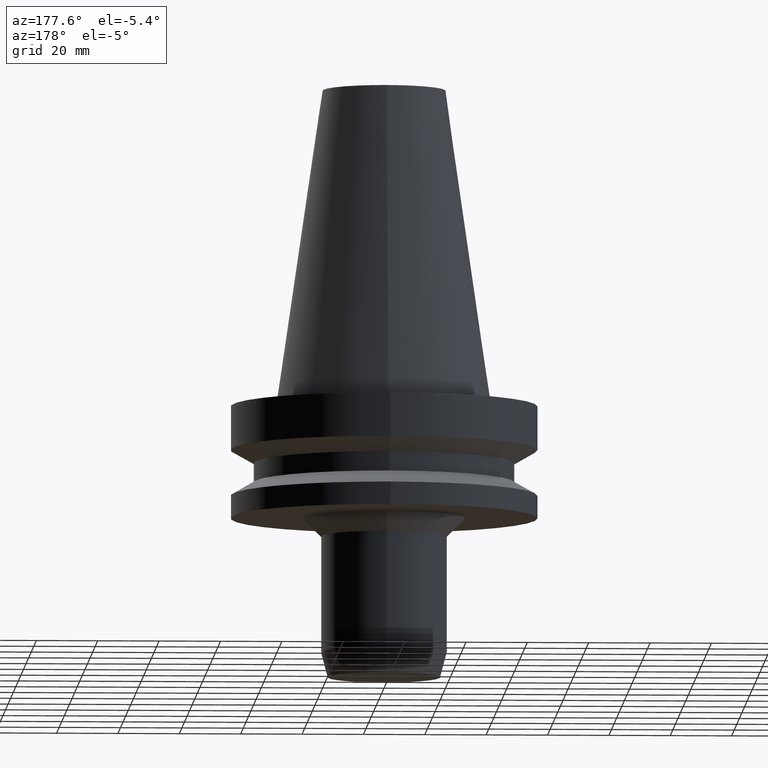
[diagram: clean part render]
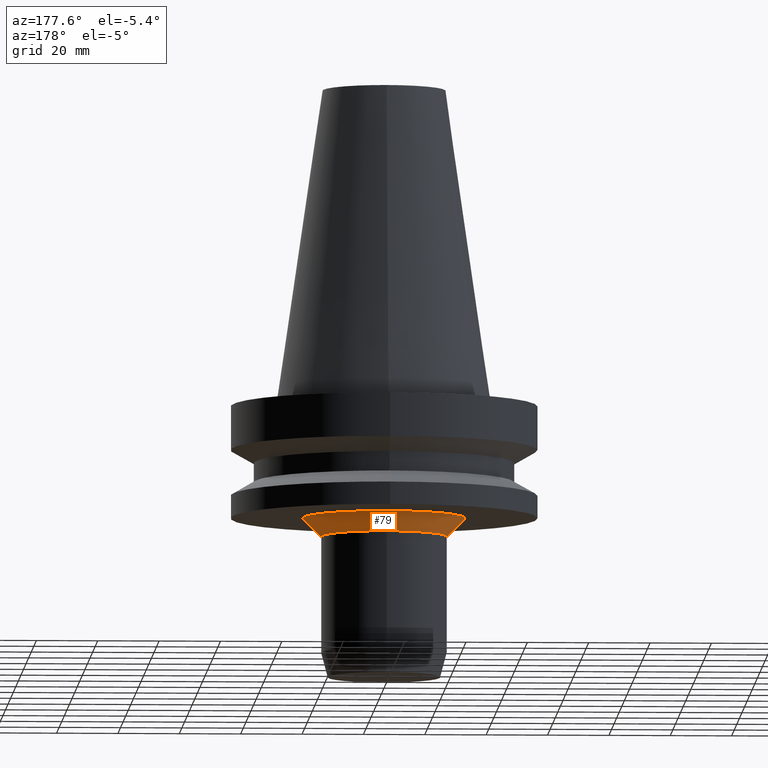
[diagram: same view with one face highlighted and labeled with its STEP entity id]
A machine part, auxiliary view. The second image highlights one B-rep face of the part: STEP entity #79.
In plain terms, the highlighted conical surface has half-angle 45 deg.
Its self-contained STEP definition (entity closure, byte-faithful):
#79=ADVANCED_FACE('',(#100,#101),#102,.T.);
#100=FACE_BOUND('',#140,.T.);
#101=FACE_BOUND('',#141,.T.);
#102=CONICAL_SURFACE('',#142,23.5,0.785398163397449);
#140=EDGE_LOOP('',(#188));
#141=EDGE_LOOP('',(#189));
#142=AXIS2_PLACEMENT_3D('',#190,#191,#192);
#188=ORIENTED_EDGE('',*,*,#242,.F.);
#189=ORIENTED_EDGE('',*,*,#241,.T.);
#190=CARTESIAN_POINT('',(2.51052593825207E-015,5.02105187650415E-015,-41.0));
#191=DIRECTION('',(-6.12323399573677E-017,-1.22464679914735E-016,1.0));
#192=DIRECTION('',(-1.23259516440783E-032,1.0,1.22464679914735E-016));
#241=EDGE_CURVE('',#257,#257,#258,.T.);
#242=EDGE_CURVE('',#259,#259,#260,.T.);
#257=VERTEX_POINT('',#283);
#258=CIRCLE('',#284,20.5);
#259=VERTEX_POINT('',#285);
#260=CIRCLE('',#286,26.5);
#283=CARTESIAN_POINT('',(2.69422295812418E-015,20.5,-44.0));
#284=AXIS2_PLACEMENT_3D('',#312,#313,#314);
#285=CARTESIAN_POINT('',(2.32682891837997E-015,26.5,-38.0));
#286=AXIS2_PLACEMENT_3D('',#315,#316,#317);
#312=CARTESIAN_POINT('',(2.69422295812418E-015,5.38844591624835E-015,-44.0));
#313=DIRECTION('',(-6.12323399573677E-017,-1.22464679914735E-016,1.0));
#314=DIRECTION('',(-1.23259516440783E-032,1.0,1.22464679914735E-016));
#315=CARTESIAN_POINT('',(2.32682891837997E-015,4.65365783675994E-015,-38.0));
#316=DIRECTION('',(-6.12323399573677E-017,-1.22464679914735E-016,1.0));
#317=DIRECTION('',(-1.23259516440783E-032,1.0,1.22464679914735E-016));